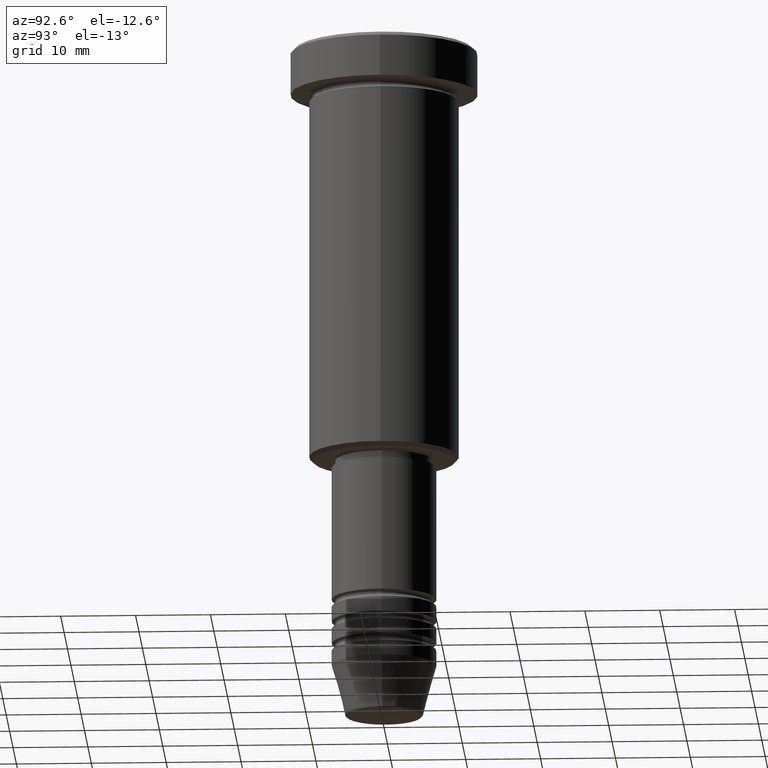
[diagram: clean part render]
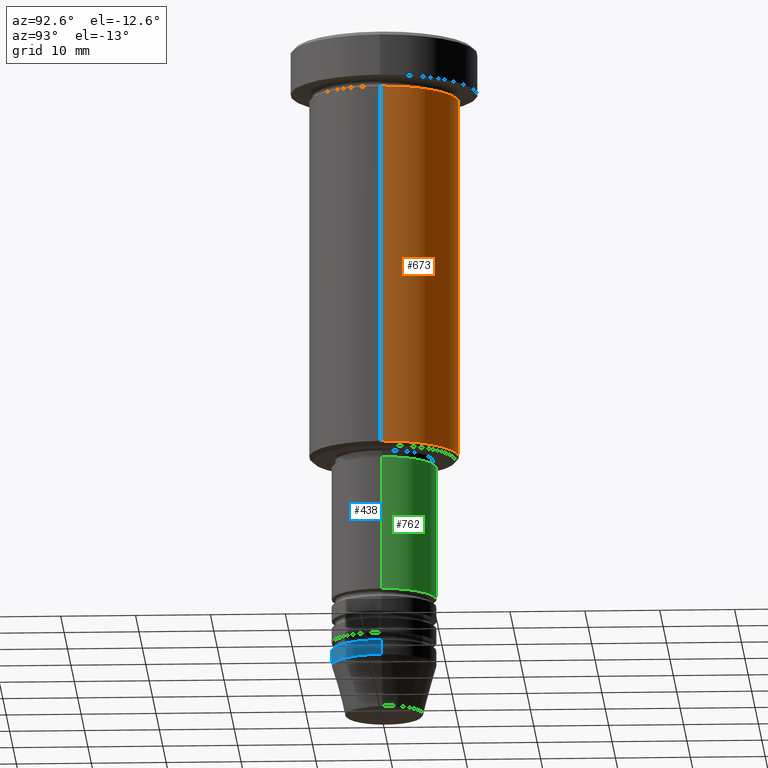
[diagram: same view with three faces highlighted in distinct colors, each labeled with its STEP entity id]
A machine part, auxiliary view with three faces highlighted in distinct colors.
Their STEP definitions:

[orange] entity #673 — the highlighted cylindrical surface (partial cylindrical patch) has radius 10 mm, axis along (-0, -0, 1).
#124 = CARTESIAN_POINT ( 'NONE',  ( -10.00000000000000000, 1.224646799147353256E-15, -6.999999999999996447 ) ) ;
#127 = VERTEX_POINT ( 'NONE', #124 ) ;
#132 = CARTESIAN_POINT ( 'NONE',  ( 10.00000000000000000, 0.000000000000000000, -6.999999999999996447 ) ) ;
#138 = AXIS2_PLACEMENT_3D ( 'NONE', #908, #810, #1023 ) ;
#163 = CARTESIAN_POINT ( 'NONE',  ( 10.00000000000000000, 0.000000000000000000, -55.50000000000000711 ) ) ;
#167 = DIRECTION ( 'NONE',  ( -0.000000000000000000, -0.000000000000000000, 1.000000000000000000 ) ) ;
#224 = CYLINDRICAL_SURFACE ( 'NONE', #668, 10.00000000000000000 ) ;
#265 = CARTESIAN_POINT ( 'NONE',  ( 0.000000000000000000, 0.000000000000000000, -55.50000000000000711 ) ) ;
#269 = EDGE_CURVE ( 'NONE', #689, #884, #1010, .T. ) ;
#311 = EDGE_CURVE ( 'NONE', #413, #127, #704, .T. ) ;
#413 = VERTEX_POINT ( 'NONE', #132 ) ;
#443 = LINE ( 'NONE', #520, #614 ) ;
#512 = AXIS2_PLACEMENT_3D ( 'NONE', #265, #903, #636 ) ;
#513 = CARTESIAN_POINT ( 'NONE',  ( -10.00000000000000000, 1.224646799147353256E-15, -55.50000000000000711 ) ) ;
#520 = CARTESIAN_POINT ( 'NONE',  ( -10.00000000000000000, 1.224646799147353256E-15, 0.000000000000000000 ) ) ;
#614 = VECTOR ( 'NONE', #167, 1000.000000000000000 ) ;
#636 = DIRECTION ( 'NONE',  ( -1.000000000000000000, 0.000000000000000000, 0.000000000000000000 ) ) ;
#657 = DIRECTION ( 'NONE',  ( -0.000000000000000000, -0.000000000000000000, 1.000000000000000000 ) ) ;
#668 = AXIS2_PLACEMENT_3D ( 'NONE', #1060, #891, #791 ) ;
#673 = ADVANCED_FACE ( 'NONE', ( #1136 ), #224, .T. ) ;
#689 = VERTEX_POINT ( 'NONE', #163 ) ;
#704 = CIRCLE ( 'NONE', #138, 10.00000000000000000 ) ;
#708 = ORIENTED_EDGE ( 'NONE', *, *, #311, .F. ) ;
#767 = ORIENTED_EDGE ( 'NONE', *, *, #952, .T. ) ;
#791 = DIRECTION ( 'NONE',  ( 1.000000000000000000, 0.000000000000000000, 0.000000000000000000 ) ) ;
#810 = DIRECTION ( 'NONE',  ( -0.000000000000000000, -0.000000000000000000, 1.000000000000000000 ) ) ;
#816 = VECTOR ( 'NONE', #657, 1000.000000000000000 ) ;
#824 = CARTESIAN_POINT ( 'NONE',  ( 10.00000000000000000, 0.000000000000000000, 0.000000000000000000 ) ) ;
#884 = VERTEX_POINT ( 'NONE', #513 ) ;
#891 = DIRECTION ( 'NONE',  ( -0.000000000000000000, -0.000000000000000000, 1.000000000000000000 ) ) ;
#903 = DIRECTION ( 'NONE',  ( -0.000000000000000000, -0.000000000000000000, 1.000000000000000000 ) ) ;
#904 = ORIENTED_EDGE ( 'NONE', *, *, #269, .T. ) ;
#908 = CARTESIAN_POINT ( 'NONE',  ( 0.000000000000000000, 0.000000000000000000, -6.999999999999996447 ) ) ;
#925 = ORIENTED_EDGE ( 'NONE', *, *, #1079, .F. ) ;
#952 = EDGE_CURVE ( 'NONE', #884, #127, #443, .T. ) ;
#983 = EDGE_LOOP ( 'NONE', ( #904, #767, #708, #925 ) ) ;
#1010 = CIRCLE ( 'NONE', #512, 10.00000000000000000 ) ;
#1023 = DIRECTION ( 'NONE',  ( 1.000000000000000000, 0.000000000000000000, 0.000000000000000000 ) ) ;
#1060 = CARTESIAN_POINT ( 'NONE',  ( 0.000000000000000000, 0.000000000000000000, 0.000000000000000000 ) ) ;
#1079 = EDGE_CURVE ( 'NONE', #689, #413, #1120, .T. ) ;
#1120 = LINE ( 'NONE', #824, #816 ) ;
#1136 = FACE_OUTER_BOUND ( 'NONE', #983, .T. ) ;

[blue] entity #438 — the highlighted cylindrical surface (partial cylindrical patch) has radius 7 mm, axis along (-0, -0, 1).
#21 = LINE ( 'NONE', #930, #893 ) ;
#38 = CARTESIAN_POINT ( 'NONE',  ( -7.000000000000000000, 8.572527594031473190E-16, -82.00000000000000000 ) ) ;
#45 = EDGE_CURVE ( 'NONE', #166, #644, #156, .T. ) ;
#119 = DIRECTION ( 'NONE',  ( -0.000000000000000000, -0.000000000000000000, 1.000000000000000000 ) ) ;
#150 = DIRECTION ( 'NONE',  ( -0.000000000000000000, -0.000000000000000000, 1.000000000000000000 ) ) ;
#156 = CIRCLE ( 'NONE', #970, 7.000000000000000000 ) ;
#166 = VERTEX_POINT ( 'NONE', #1122 ) ;
#207 = EDGE_CURVE ( 'NONE', #166, #621, #807, .T. ) ;
#298 = CARTESIAN_POINT ( 'NONE',  ( 7.000000000000000000, 0.000000000000000000, -84.00000000000000000 ) ) ;
#313 = ORIENTED_EDGE ( 'NONE', *, *, #918, .T. ) ;
#329 = EDGE_LOOP ( 'NONE', ( #992, #739, #313, #450 ) ) ;
#351 = CARTESIAN_POINT ( 'NONE',  ( 0.000000000000000000, 0.000000000000000000, -82.00000000000000000 ) ) ;
#438 = ADVANCED_FACE ( 'NONE', ( #1034 ), #963, .T. ) ;
#450 = ORIENTED_EDGE ( 'NONE', *, *, #1132, .F. ) ;
#459 = DIRECTION ( 'NONE',  ( -0.000000000000000000, -0.000000000000000000, 1.000000000000000000 ) ) ;
#480 = DIRECTION ( 'NONE',  ( 1.000000000000000000, 0.000000000000000000, 0.000000000000000000 ) ) ;
#485 = CARTESIAN_POINT ( 'NONE',  ( 0.000000000000000000, 0.000000000000000000, 0.000000000000000000 ) ) ;
#531 = DIRECTION ( 'NONE',  ( 1.000000000000000000, 0.000000000000000000, 0.000000000000000000 ) ) ;
#550 = CIRCLE ( 'NONE', #1166, 7.000000000000000000 ) ;
#567 = CARTESIAN_POINT ( 'NONE',  ( -7.000000000000000000, 8.572527594031473190E-16, 0.000000000000000000 ) ) ;
#621 = VERTEX_POINT ( 'NONE', #38 ) ;
#640 = DIRECTION ( 'NONE',  ( -0.000000000000000000, -0.000000000000000000, 1.000000000000000000 ) ) ;
#644 = VERTEX_POINT ( 'NONE', #298 ) ;
#713 = DIRECTION ( 'NONE',  ( -0.000000000000000000, -0.000000000000000000, 1.000000000000000000 ) ) ;
#739 = ORIENTED_EDGE ( 'NONE', *, *, #45, .T. ) ;
#740 = CARTESIAN_POINT ( 'NONE',  ( 7.000000000000000000, 0.000000000000000000, -82.00000000000000000 ) ) ;
#807 = LINE ( 'NONE', #567, #1089 ) ;
#821 = AXIS2_PLACEMENT_3D ( 'NONE', #485, #150, #480 ) ;
#893 = VECTOR ( 'NONE', #119, 1000.000000000000000 ) ;
#906 = DIRECTION ( 'NONE',  ( 1.000000000000000000, 0.000000000000000000, 0.000000000000000000 ) ) ;
#918 = EDGE_CURVE ( 'NONE', #644, #1061, #21, .T. ) ;
#930 = CARTESIAN_POINT ( 'NONE',  ( 7.000000000000000000, 0.000000000000000000, 0.000000000000000000 ) ) ;
#963 = CYLINDRICAL_SURFACE ( 'NONE', #821, 7.000000000000000000 ) ;
#970 = AXIS2_PLACEMENT_3D ( 'NONE', #1082, #640, #906 ) ;
#992 = ORIENTED_EDGE ( 'NONE', *, *, #207, .F. ) ;
#1034 = FACE_OUTER_BOUND ( 'NONE', #329, .T. ) ;
#1061 = VERTEX_POINT ( 'NONE', #740 ) ;
#1082 = CARTESIAN_POINT ( 'NONE',  ( 0.000000000000000000, 0.000000000000000000, -84.00000000000000000 ) ) ;
#1089 = VECTOR ( 'NONE', #459, 1000.000000000000000 ) ;
#1122 = CARTESIAN_POINT ( 'NONE',  ( -7.000000000000000000, 8.572527594031473190E-16, -84.00000000000000000 ) ) ;
#1132 = EDGE_CURVE ( 'NONE', #621, #1061, #550, .T. ) ;
#1166 = AXIS2_PLACEMENT_3D ( 'NONE', #351, #713, #531 ) ;

[green] entity #762 — the highlighted cylindrical surface (partial cylindrical patch) has radius 7 mm, axis along (-0, -0, 1).
#19 = EDGE_CURVE ( 'NONE', #1124, #743, #780, .T. ) ;
#44 = DIRECTION ( 'NONE',  ( -0.000000000000000000, -0.000000000000000000, 1.000000000000000000 ) ) ;
#53 = FACE_OUTER_BOUND ( 'NONE', #372, .T. ) ;
#111 = ORIENTED_EDGE ( 'NONE', *, *, #421, .F. ) ;
#129 = DIRECTION ( 'NONE',  ( 1.000000000000000000, 0.000000000000000000, 0.000000000000000000 ) ) ;
#189 = CARTESIAN_POINT ( 'NONE',  ( 0.000000000000000000, 0.000000000000000000, -74.99999999999998579 ) ) ;
#268 = AXIS2_PLACEMENT_3D ( 'NONE', #189, #1183, #546 ) ;
#284 = DIRECTION ( 'NONE',  ( 1.000000000000000000, 0.000000000000000000, 0.000000000000000000 ) ) ;
#338 = EDGE_CURVE ( 'NONE', #616, #1145, #434, .T. ) ;
#372 = EDGE_LOOP ( 'NONE', ( #826, #1155, #753, #111 ) ) ;
#421 = EDGE_CURVE ( 'NONE', #1124, #616, #688, .T. ) ;
#434 = CIRCLE ( 'NONE', #1106, 7.000000000000000000 ) ;
#442 = CARTESIAN_POINT ( 'NONE',  ( -7.000000000000000000, 8.572527594031473190E-16, -57.00000000000000000 ) ) ;
#494 = VECTOR ( 'NONE', #495, 1000.000000000000000 ) ;
#495 = DIRECTION ( 'NONE',  ( -0.000000000000000000, -0.000000000000000000, 1.000000000000000000 ) ) ;
#521 = CARTESIAN_POINT ( 'NONE',  ( 7.000000000000000000, 0.000000000000000000, -57.00000000000000000 ) ) ;
#546 = DIRECTION ( 'NONE',  ( 1.000000000000000000, 0.000000000000000000, 0.000000000000000000 ) ) ;
#582 = CARTESIAN_POINT ( 'NONE',  ( 0.000000000000000000, 0.000000000000000000, 0.000000000000000000 ) ) ;
#616 = VERTEX_POINT ( 'NONE', #521 ) ;
#622 = DIRECTION ( 'NONE',  ( -0.000000000000000000, -0.000000000000000000, 1.000000000000000000 ) ) ;
#665 = DIRECTION ( 'NONE',  ( -0.000000000000000000, -0.000000000000000000, 1.000000000000000000 ) ) ;
#688 = LINE ( 'NONE', #1045, #494 ) ;
#743 = VERTEX_POINT ( 'NONE', #850 ) ;
#753 = ORIENTED_EDGE ( 'NONE', *, *, #338, .F. ) ;
#762 = ADVANCED_FACE ( 'NONE', ( #53 ), #1056, .T. ) ;
#780 = CIRCLE ( 'NONE', #268, 7.000000000000000000 ) ;
#796 = EDGE_CURVE ( 'NONE', #743, #1145, #1129, .T. ) ;
#826 = ORIENTED_EDGE ( 'NONE', *, *, #19, .T. ) ;
#850 = CARTESIAN_POINT ( 'NONE',  ( -7.000000000000000000, 8.572527594031473190E-16, -74.99999999999998579 ) ) ;
#876 = CARTESIAN_POINT ( 'NONE',  ( 7.000000000000000000, 0.000000000000000000, -74.99999999999998579 ) ) ;
#951 = VECTOR ( 'NONE', #665, 1000.000000000000000 ) ;
#1000 = CARTESIAN_POINT ( 'NONE',  ( 0.000000000000000000, 0.000000000000000000, -57.00000000000000000 ) ) ;
#1045 = CARTESIAN_POINT ( 'NONE',  ( 7.000000000000000000, 0.000000000000000000, 0.000000000000000000 ) ) ;
#1048 = AXIS2_PLACEMENT_3D ( 'NONE', #582, #44, #129 ) ;
#1056 = CYLINDRICAL_SURFACE ( 'NONE', #1048, 7.000000000000000000 ) ;
#1106 = AXIS2_PLACEMENT_3D ( 'NONE', #1000, #622, #284 ) ;
#1124 = VERTEX_POINT ( 'NONE', #876 ) ;
#1129 = LINE ( 'NONE', #1156, #951 ) ;
#1145 = VERTEX_POINT ( 'NONE', #442 ) ;
#1155 = ORIENTED_EDGE ( 'NONE', *, *, #796, .T. ) ;
#1156 = CARTESIAN_POINT ( 'NONE',  ( -7.000000000000000000, 8.572527594031473190E-16, 0.000000000000000000 ) ) ;
#1183 = DIRECTION ( 'NONE',  ( -0.000000000000000000, -0.000000000000000000, 1.000000000000000000 ) ) ;